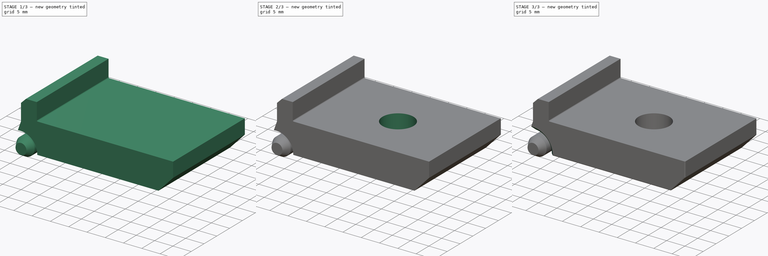
[diagram: build sequence overview — one tinted view per stage of 3, left to right]
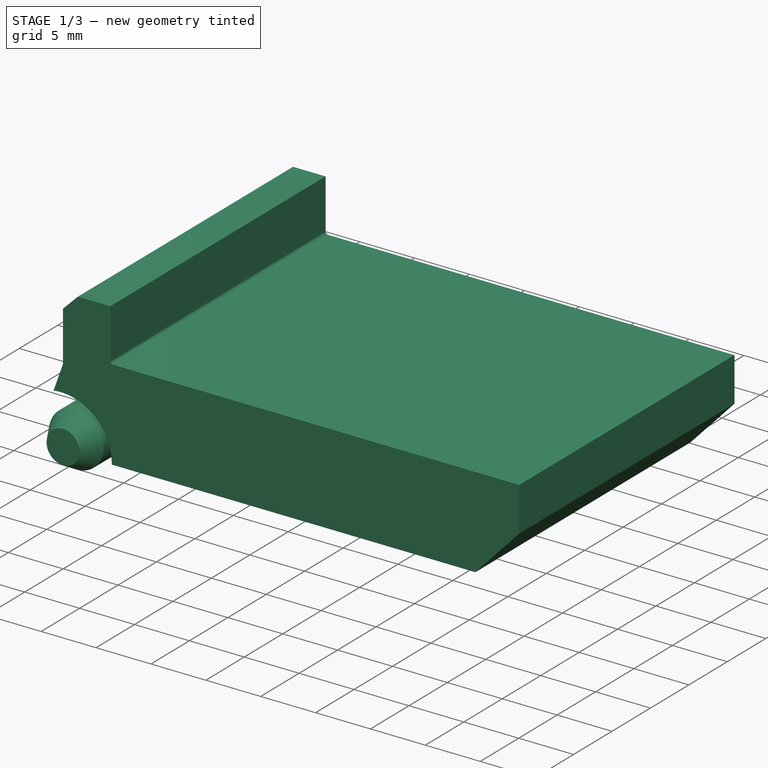
[diagram: stage 1 of 3 — iso view after this stage's code; geometry added in this stage tinted green]
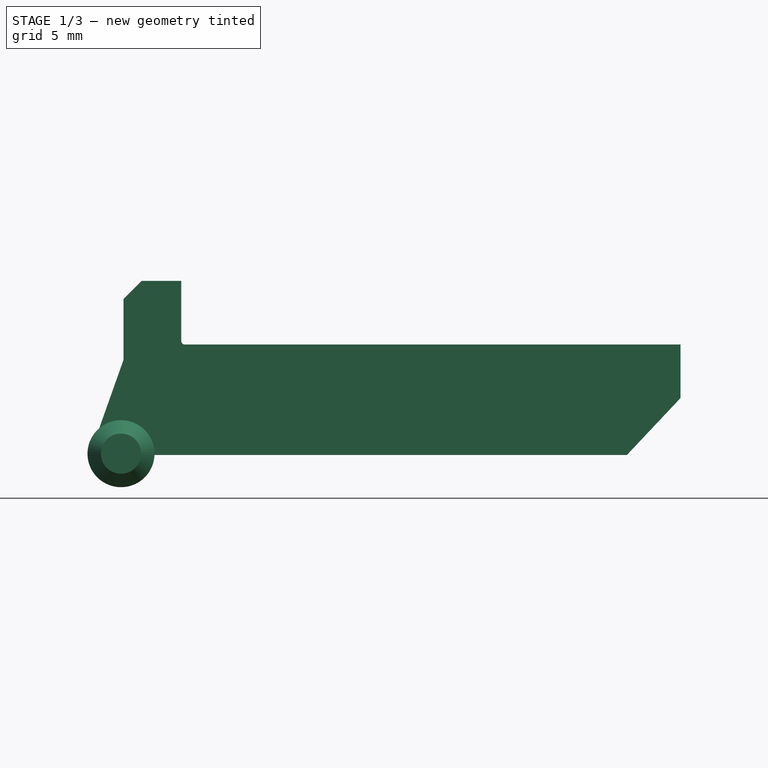
[diagram: stage 1 of 3 — front view after this stage's code; geometry added in this stage tinted green]
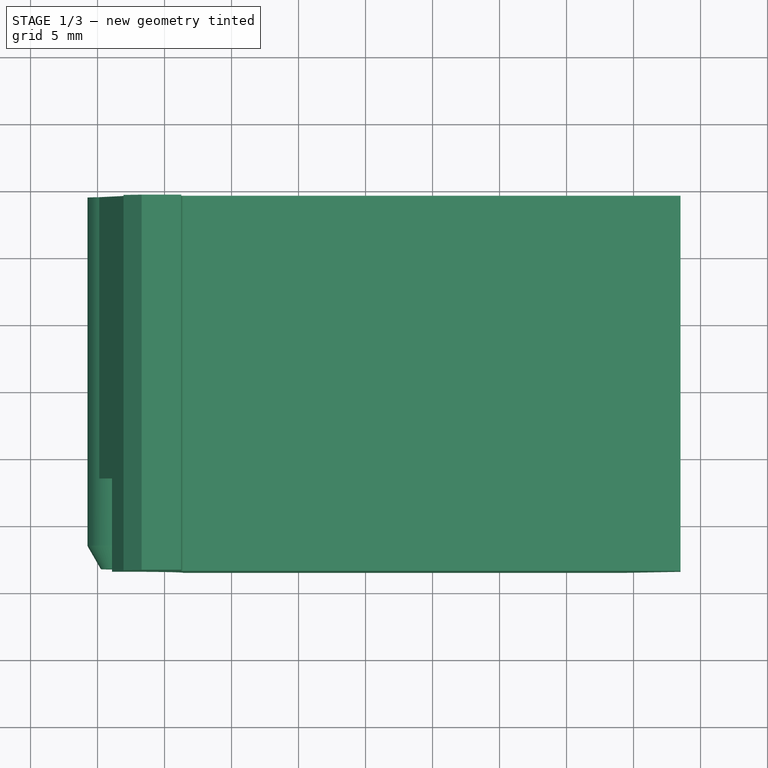
[diagram: stage 1 of 3 — top view after this stage's code; geometry added in this stage tinted green]
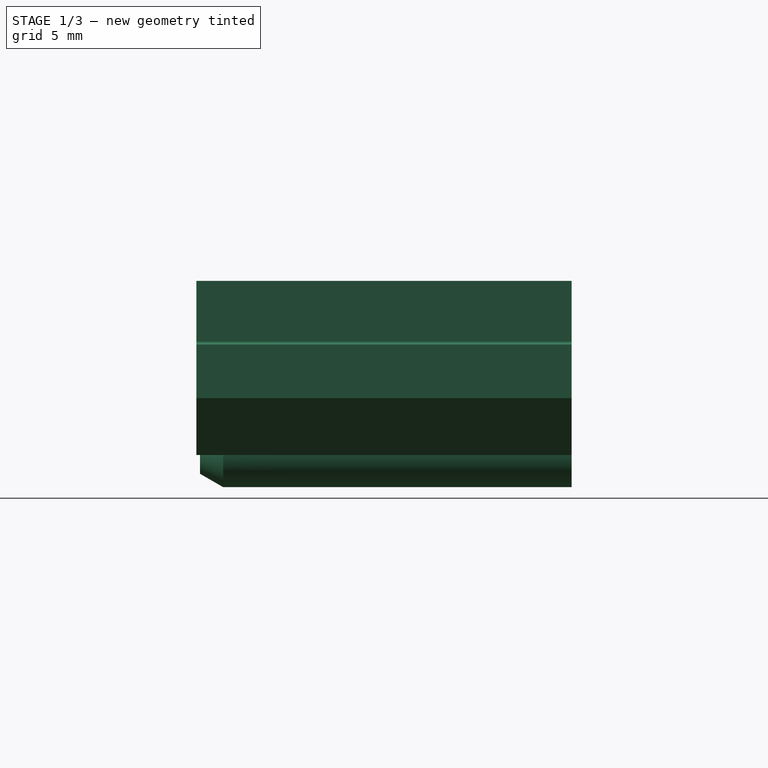
[diagram: stage 1 of 3 — right view after this stage's code; geometry added in this stage tinted green]
FCSTD DOCUMENT  (FreeCAD 0.18R)
Label: rambo-upper-hinge
License: All rights reserved
LicenseURL: http://en.wikipedia.org/wiki/All_rights_reserved
objects: Sketcher::SketchObject×5, PartDesign::Pocket×3, PartDesign::Fillet×2, PartDesign::Pad×1, PartDesign::Revolution×1, PartDesign::Chamfer×1, PartDesign::Body×1
note: 19 computed .brp shape members not serialized (recipe doc carries the construction recipe); baked Part::Feature solids carry a one-line shape summary decoded from their .brp

FEATURE [Sketcher::SketchObject] Sketch013
  AttachmentOffset = pos=(0,0,6.5) rot=(0,0,1;0rad)
  MapMode = 5
  Placement = pos=(0,-6.5,-1.4e-15) rot=(1,0,0;1.5708rad)
  Support = -> [XZ_Plane002]
  sketch-geometry (1):
    g0: Circle CenterX=11.75 CenterY=-46.5 CenterZ=0 NormalX=0 NormalY=0 NormalZ=1 AngleXU=0 Radius=4.625
  constraints (3):
    c: Diameter(g0) = 9.25
    c: DistanceX(g-1,g0) = 11.75
    c: DistanceY(g0,g-1) = 46.5
FEATURE [Sketcher::SketchObject] Sketch015
  MapMode = 5
  Support = -> [XY_Plane002]
  sketch-geometry (1):
    g0: Circle CenterX=35.55 CenterY=0 CenterZ=0 NormalX=0 NormalY=0 NormalZ=1 AngleXU=0 Radius=4.25
  constraints (3):
    c: Diameter(g0) = 8.5
    c: PointOnObject(g0,g-1)
    c: DistanceX(g-1,g0) = 35.55
FEATURE [Sketcher::SketchObject] Sketch014
  AttachmentOffset = pos=(-6.5,-46.5,11.75) rot=(0,0,1;0rad)
  MapMode = 5
  Placement = pos=(11.75,-6.5,-46.5) rot=(0.57735,0.57735,0.57735;2.0944rad)
  Support = -> [YZ_Plane002]
  sketch-geometry (5):
    g0: LineSegment StartX=-6.73205 StartY=1.5 StartZ=0 EndX=-6.73205 EndY=0 EndZ=0
    g1: LineSegment StartX=-5 StartY=2.5 StartZ=0 EndX=0 EndY=2.5 EndZ=0
    g2: LineSegment StartX=0 StartY=2.5 StartZ=0 EndX=0 EndY=0 EndZ=0
    g3: LineSegment StartX=-6.73205 StartY=0 StartZ=0 EndX=0 EndY=0 EndZ=0
    g4: LineSegment StartX=-6.73205 StartY=1.5 StartZ=0 EndX=-5 EndY=2.5 EndZ=0
  constraints (14):
    c: Vertical(g0)
    c: Horizontal(g1)
    c: Coincident(g2,g1)
    c: Vertical(g2)
    c: Coincident(g3,g2)
    c: Horizontal(g3)
    c: Coincident(g0,g3)
    c: DistanceY(g2,g2) = 2.5
    c: Coincident(g4,g0)
    c: Coincident(g4,g1)
    c: DistanceY(g0,g0) = 1.5
    c: DistanceX(g1,g1) = 5
    c: Angle(g0,g4) = 2.0944
    c: Coincident(g2,g-1)
FEATURE [Sketcher::SketchObject] Sketch012
  AttachmentOffset = pos=(16,14.5,-38.1) rot=(1,0,0;-1.5708rad)
  MapMode = 5
  Placement = pos=(16,14.5,-38.1) rot=(1,0,0;4.71239rad)
  Support = -> [XY_Plane002]
  sketch-geometry (11):
    g0: LineSegment StartX=0.5 StartY=0.25 StartZ=0 EndX=37.5 EndY=0.25 EndZ=0
    g1: LineSegment StartX=37.5 StartY=0.25 StartZ=0 EndX=37.5 EndY=4.25 EndZ=0
    g2: LineSegment StartX=33.5 StartY=8.5 StartZ=0 EndX=37.5 EndY=4.25 EndZ=0
    g3: LineSegment StartX=-2.71273 StartY=-4.5 StartZ=0 EndX=0.25 EndY=-4.5 EndZ=0
    g4: LineSegment StartX=33.5 StartY=8.5 StartZ=0 EndX=-1.752 EndY=8.5 EndZ=0
    g5: LineSegment StartX=0.25 StartY=-4.5 StartZ=0 EndX=0.25 EndY=0 EndZ=0
    g6: ArcOfCircle CenterX=0.5 CenterY=0 CenterZ=0 NormalX=0 NormalY=0 NormalZ=1 AngleXU=0 Radius=0.25 StartAngle=1.5708 EndAngle=3.14159
    g7: LineSegment StartX=-5.87481 StartY=6.5 StartZ=0 EndX=-4.064 EndY=1.4 EndZ=0
    g8: LineSegment StartX=-4.064 StartY=1.4 StartZ=0 EndX=-4.064 EndY=-3.14873 EndZ=0
    g9: LineSegment StartX=-4.064 StartY=-3.14873 StartZ=0 EndX=-2.71273 EndY=-4.5 EndZ=0
    g10: ArcOfCircle CenterX=-4.25 CenterY=8.4 CenterZ=0 NormalX=0 NormalY=0 NormalZ=1 AngleXU=0 Radius=2.5 StartAngle=0.0400107 EndAngle=4.00491
  constraints (28):
    c: Horizontal(g0)
    c: Coincident(g1,g0)
    c: Vertical(g1)
    c: DistanceY(g0,g1) = 4
    c: Coincident(g2,g1)
    c: Horizontal(g4)
    c: Coincident(g4,g2)
    c: DistanceX(g2,g1) = 4
    c: Horizontal(g3)
    c: Coincident(g5,g3)
    c: Vertical(g5)
    c: Tangent(g0,g6) = 1.5708
    c: Tangent(g5,g6) = 1.5708
    c: DistanceX(g5,g6) = 0.25
    c: PointOnObject(g6,g-1)
    c: DistanceX(g0,g0) = 37
    c: DistanceY(g5,g5) = 4.5
    c: Vertical(g8)
    c: Coincident(g9,g3)
    c: Coincident(g9,g8)
    c: Coincident(g8,g7)
    c: Angle(g9,g8) = 2.35619
    c: Diameter(g10) = 5
    c: DistanceX(g10,g-1) = 4.25
    c: DistanceY(g-1,g10) = 8.4
    c: DistanceY(g-1,g7) = 1.4
    c: Coincident(g10,g4)
    c: Coincident(g10,g7)
FEATURE [PartDesign::Pad] Pad007
  Length = 28
  Length2 = 100
  Profile = -> Sketch012
  Reversed = true
  Type = 0
FEATURE [PartDesign::Pocket] Pocket004
  BaseFeature = -> Pad007
  Length = 7
  Length2 = 100
  Profile = -> Sketch013
  Reversed = true
  Type = 0
FEATURE [PartDesign::Revolution] Revolution001
  Angle = 360
  Axis = (3e-16,1,-2e-16)
  Base = (11.75,-6.5,-46.5)
  BaseFeature = -> Pocket004
  Profile = -> Sketch014
  ReferenceAxis = -> Sketch014 [H_Axis]
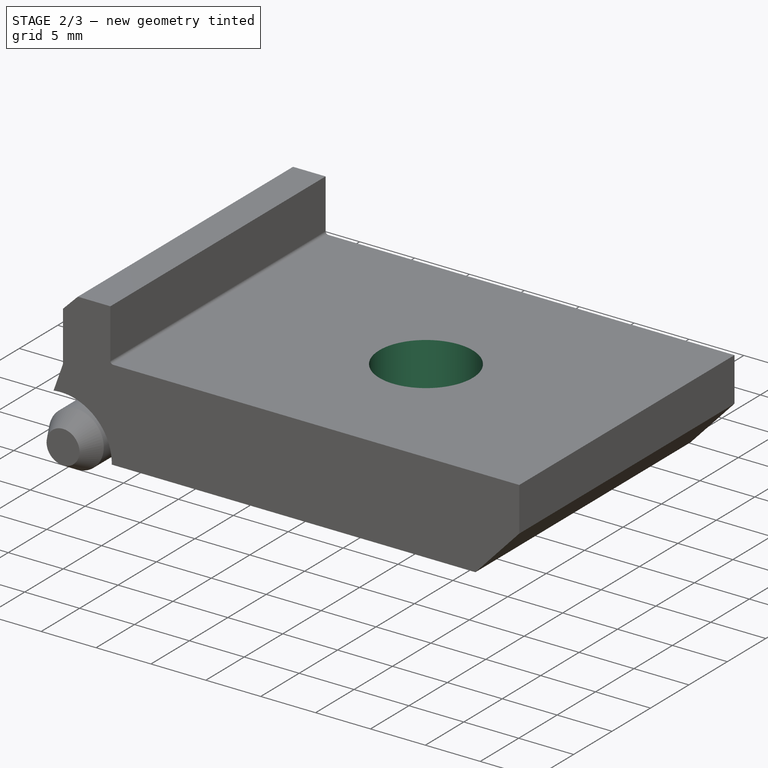
[diagram: stage 2 of 3 — iso view after this stage's code; geometry added in this stage tinted green]
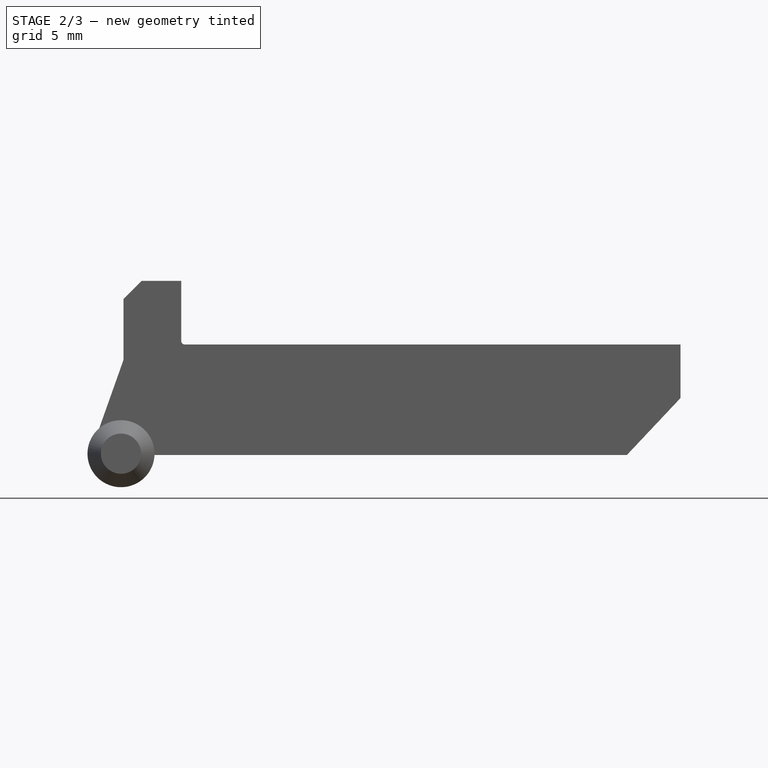
[diagram: stage 2 of 3 — front view after this stage's code; geometry added in this stage tinted green]
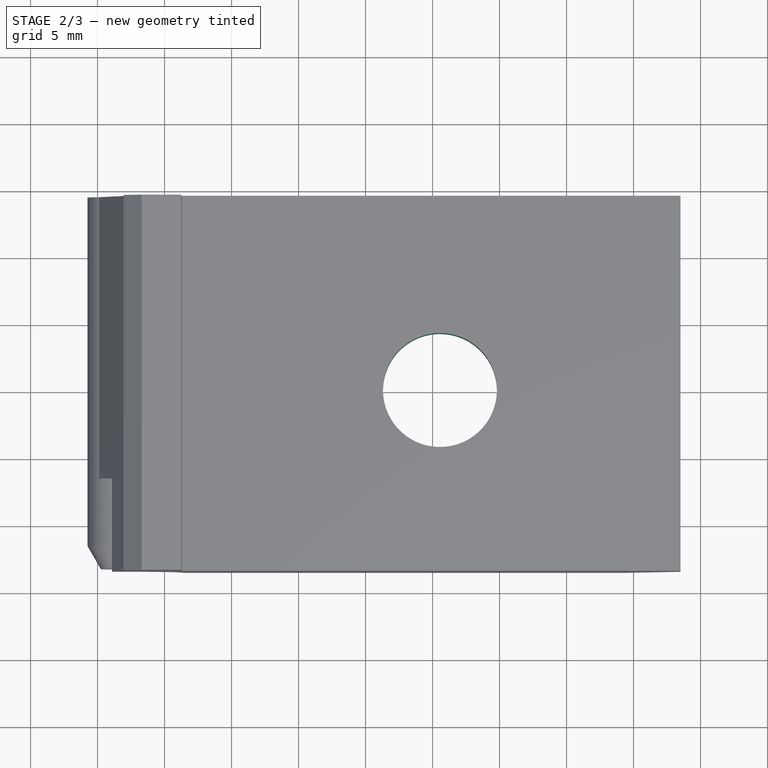
[diagram: stage 2 of 3 — top view after this stage's code; geometry added in this stage tinted green]
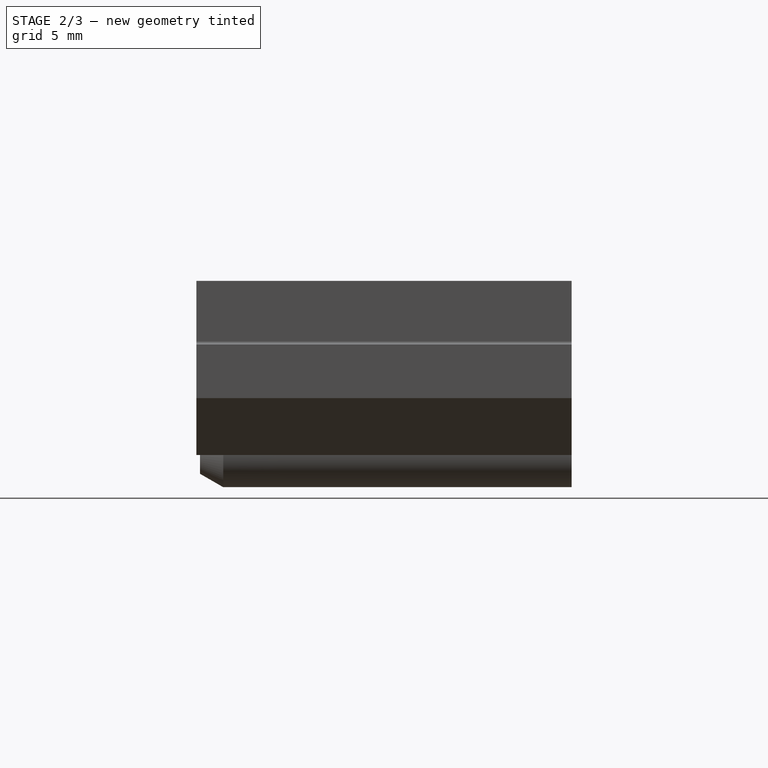
[diagram: stage 2 of 3 — right view after this stage's code; geometry added in this stage tinted green]
FEATURE [PartDesign::Pocket] Pocket005
  BaseFeature = -> Revolution001
  Length = 5
  Length2 = 100
  Profile = -> Sketch015
  Type = 1
FEATURE [Sketcher::SketchObject] Sketch016
  AttachmentOffset = pos=(0,0,-43) rot=(0,0,1;0rad)
  MapMode = 5
  Placement = pos=(0,0,-43) rot=(0,0,1;0rad)
  Support = -> [XY_Plane002]
  sketch-geometry (1):
    g0: Circle CenterX=35.55 CenterY=0 CenterZ=0 NormalX=0 NormalY=0 NormalZ=1 AngleXU=0 Radius=8.625
  constraints (3):
    c: Diameter(g0) = 17.25
    c: PointOnObject(g0,g-1)
    c: DistanceX(g-1,g0) = 35.55
FEATURE [PartDesign::Pocket] Pocket006
  BaseFeature = -> Pocket005
  Length = 4
  Length2 = 100
  Profile = -> Sketch016
  Type = 0
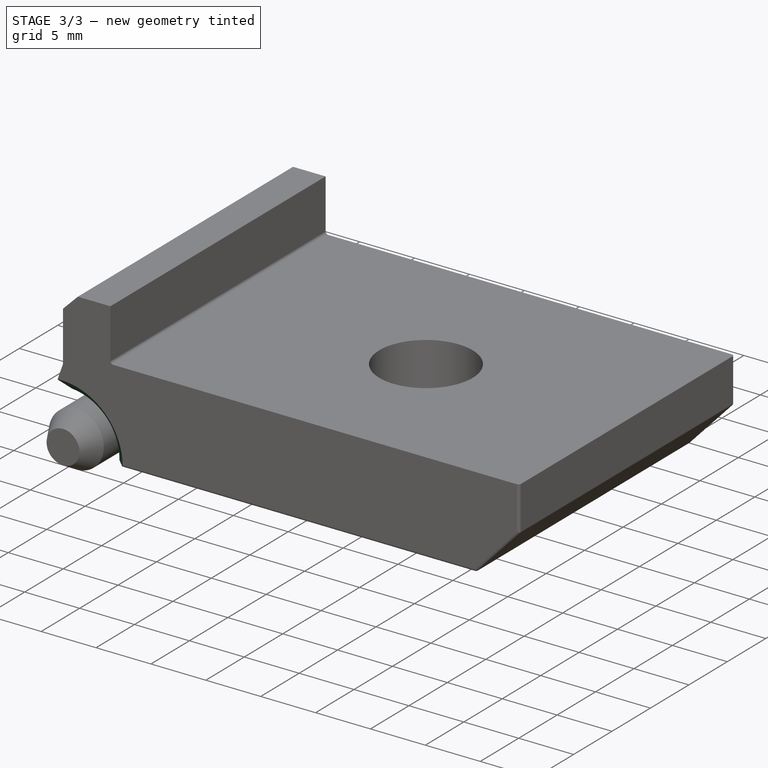
[diagram: stage 3 of 3 — iso view after this stage's code; geometry added in this stage tinted green]
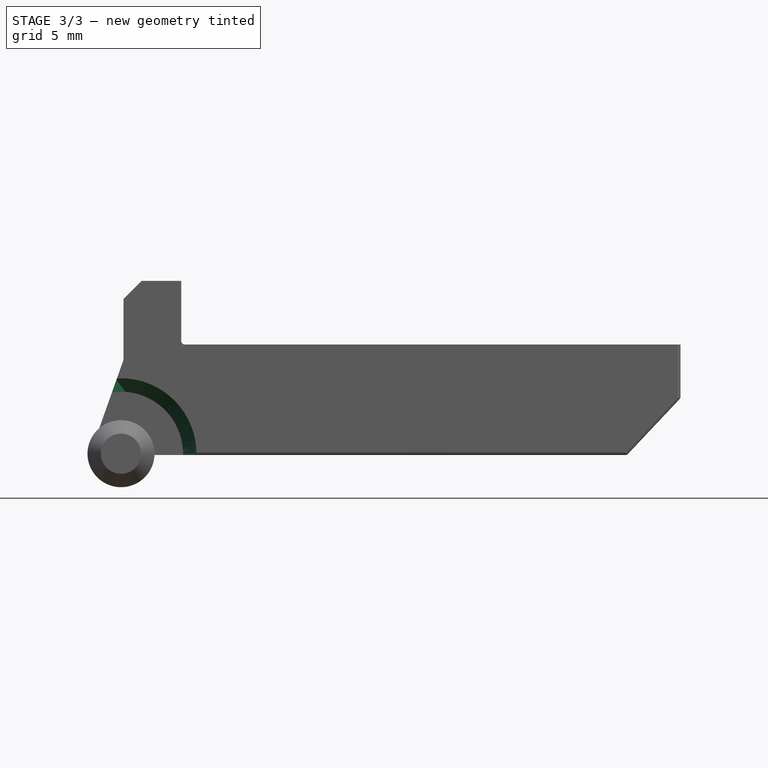
[diagram: stage 3 of 3 — front view after this stage's code; geometry added in this stage tinted green]
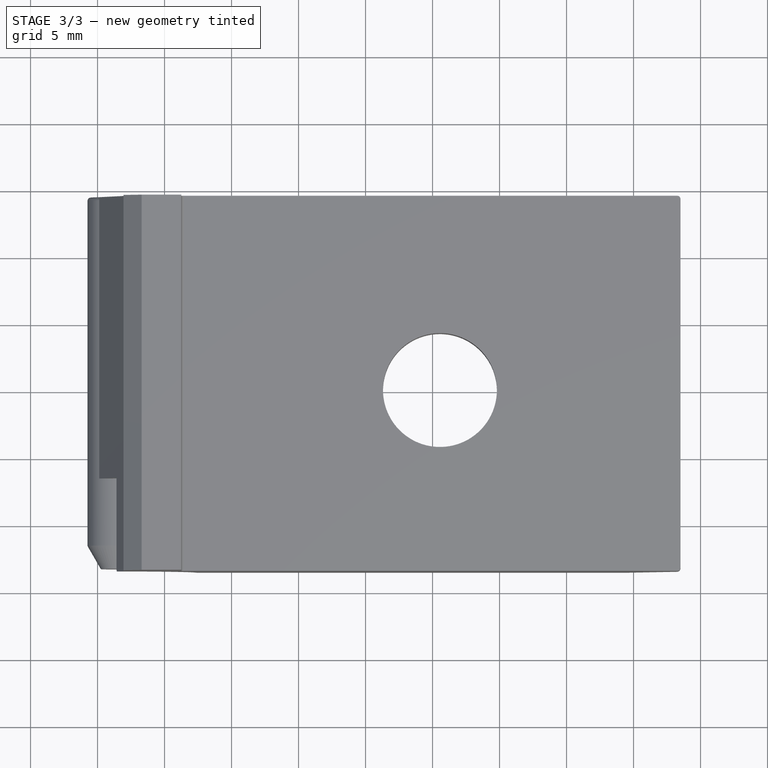
[diagram: stage 3 of 3 — top view after this stage's code; geometry added in this stage tinted green]
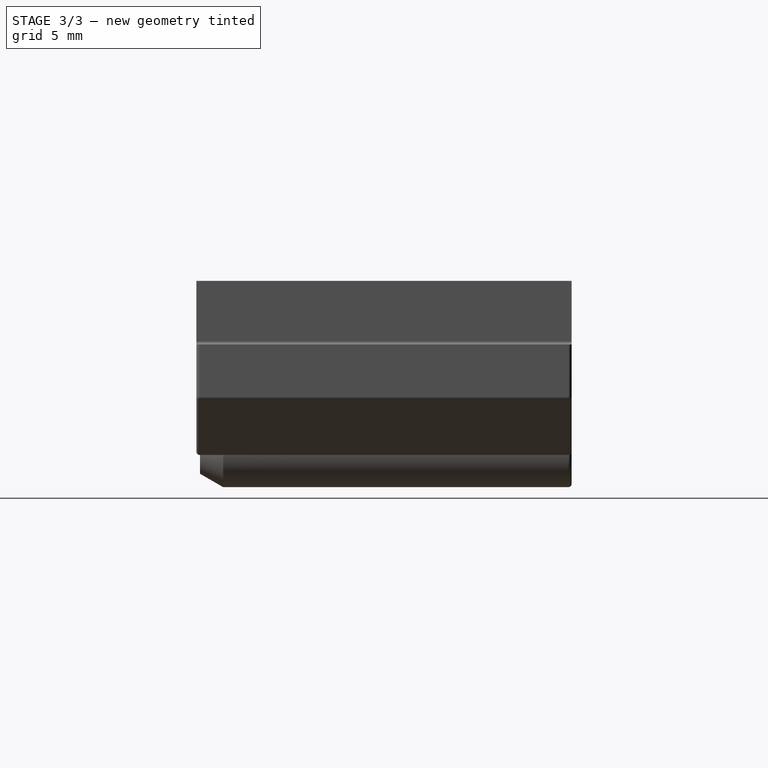
[diagram: stage 3 of 3 — right view after this stage's code; geometry added in this stage tinted green]
FEATURE [PartDesign::Chamfer] Chamfer
  Base = -> Pocket006 [Edge23,Edge40]
  BaseFeature = -> Pocket006
  Size = 1
FEATURE [PartDesign::Fillet] Fillet007
  Base = -> Chamfer [Edge6,Edge8,Edge10,Edge42,Edge37,Edge38,Edge29,Edge31,Edge49]
  BaseFeature = -> Chamfer
  Radius = 0.25
FEATURE [PartDesign::Fillet] Fillet008
  Base = -> Fillet007 [Edge61]
  BaseFeature = -> Fillet007
  Radius = 0.35
FEATURE [PartDesign::Body] Body002  label="rambo-upper-hinge"
  Group = -> [Sketch012,Pad007,Sketch013,Pocket004,Sketch014,Revolution001,Sketch015,Pocket005,Sketch016,Pocket006,Chamfer,Fillet007,Fillet008]
  Origin = -> Origin002
  Tip = -> Fillet008
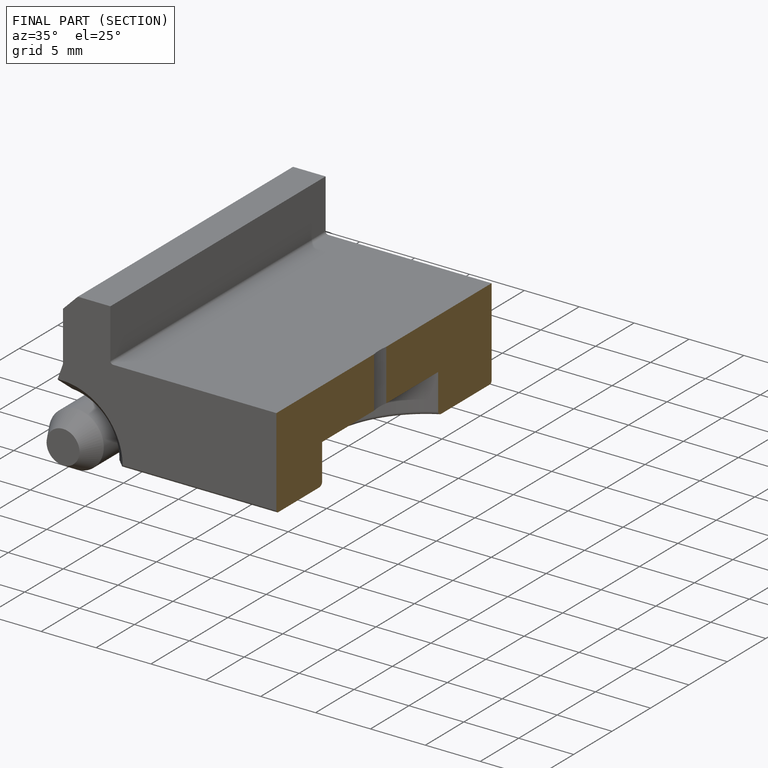
[diagram: finished part — half-section view (interior)]
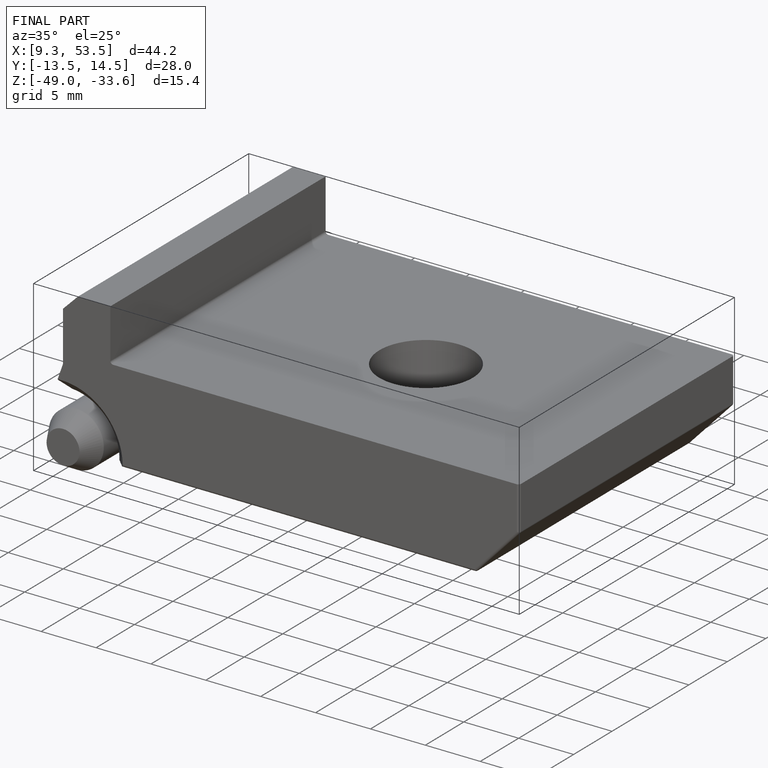
[diagram: finished part — iso view with bounding-box wireframe]
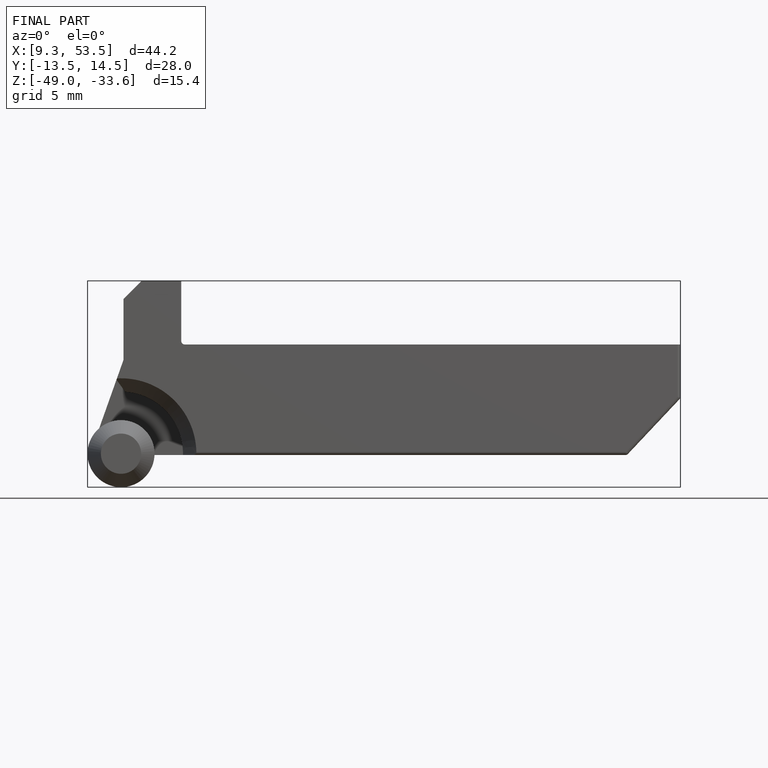
[diagram: finished part — front view with bounding-box wireframe]
